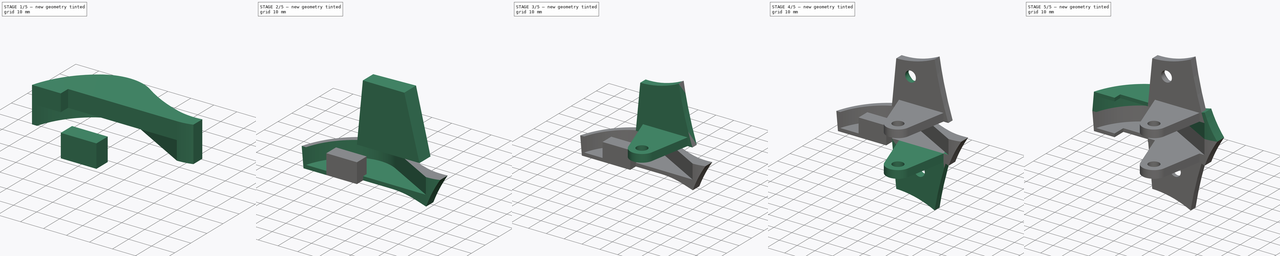
[diagram: build sequence overview — one tinted view per stage of 5, left to right]
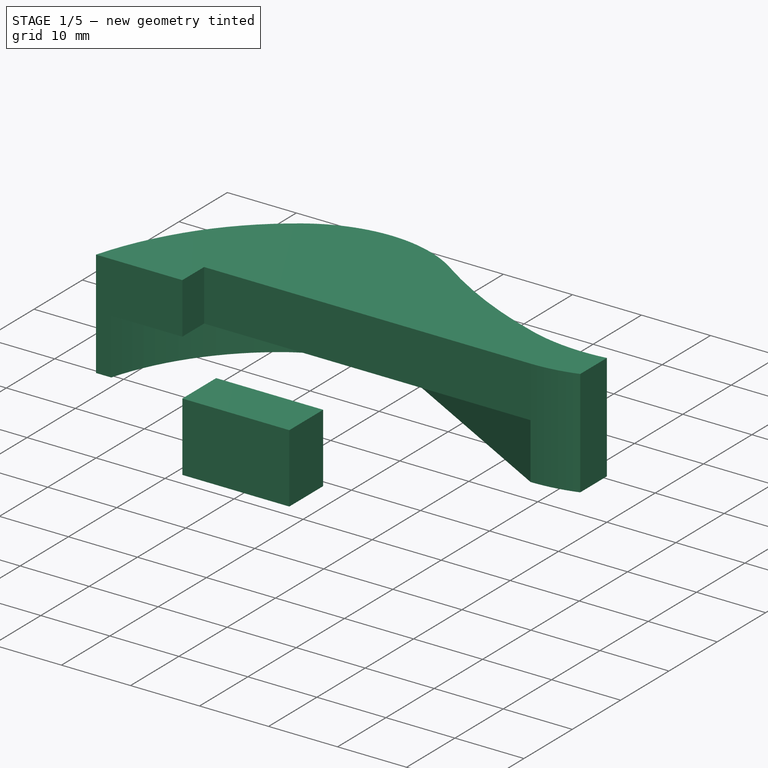
[diagram: stage 1 of 5 — iso view after this stage's code; geometry added in this stage tinted green]
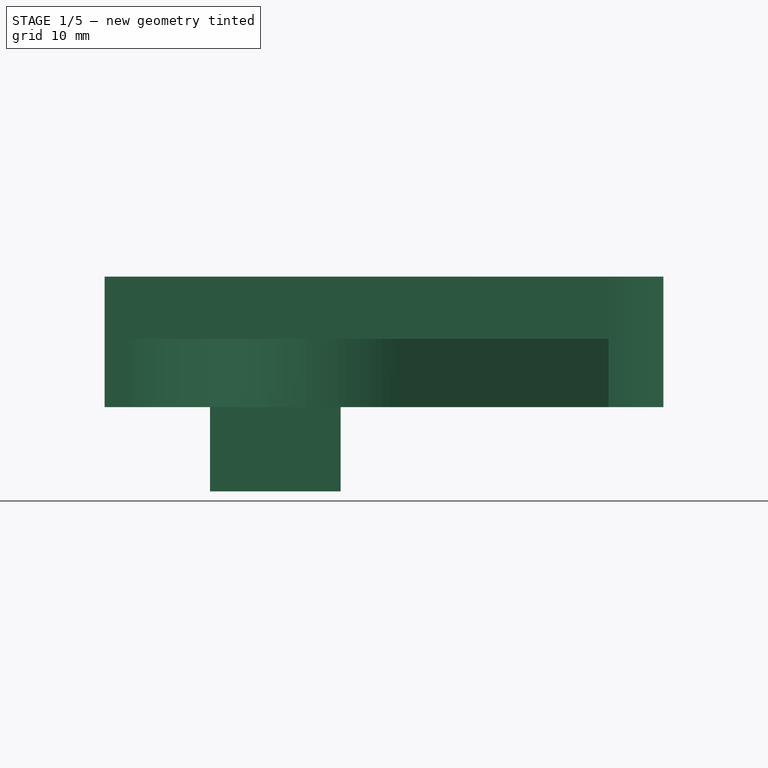
[diagram: stage 1 of 5 — front view after this stage's code; geometry added in this stage tinted green]
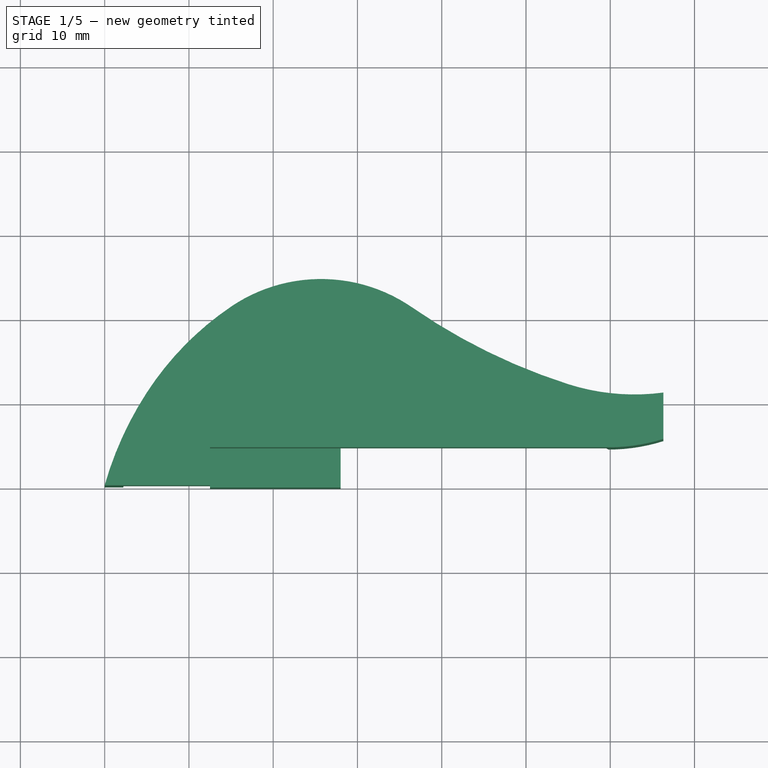
[diagram: stage 1 of 5 — top view after this stage's code; geometry added in this stage tinted green]
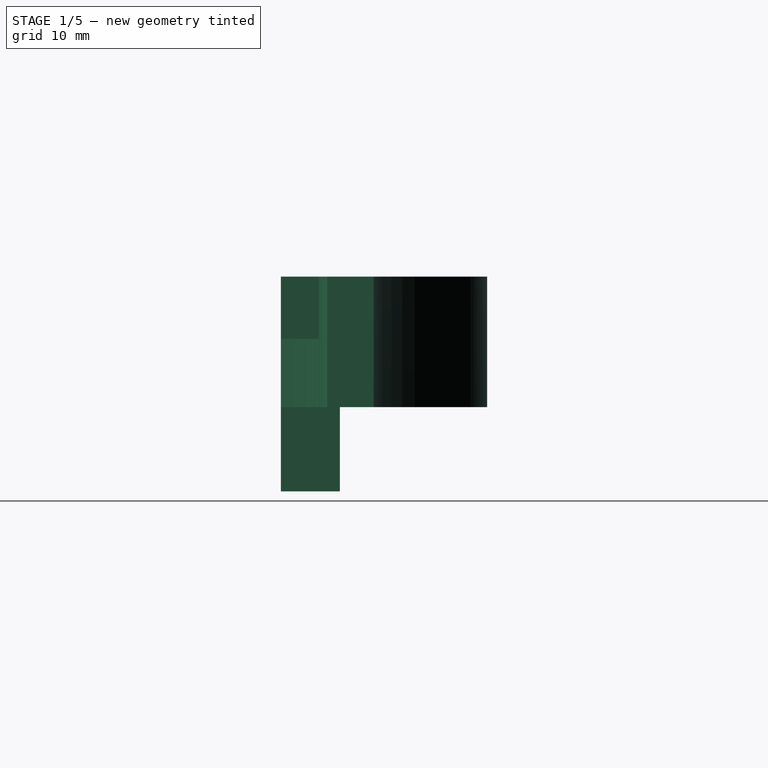
[diagram: stage 1 of 5 — right view after this stage's code; geometry added in this stage tinted green]
FCSTD DOCUMENT  (FreeCAD 0.17R13327 (Git))
Label: hinge14Left
License: All rights reserved
LicenseURL: http://en.wikipedia.org/wiki/All_rights_reserved
objects: Sketcher::SketchObject×10, PartDesign::Pocket×6, PartDesign::Pad×2, App::DocumentObjectGroup×2, Part::Mirroring×2, PartDesign::Chamfer×2, PartDesign::Draft×1, Part::Loft×1, Part::MultiFuse×1, Part::Box×1, Part::Cut×1
note: 35 computed .brp shape members not serialized (recipe doc carries the construction recipe); baked Part::Feature solids carry a one-line shape summary decoded from their .brp

FEATURE [Sketcher::SketchObject] Sketch022  label="SketchSideShape"
  MapMode = 5
  sketch-geometry (14):
    g0: LineSegment StartX=12.5 StartY=0 StartZ=0 EndX=12.5 EndY=4.5 EndZ=0
    g1: LineSegment StartX=54.8 StartY=4.5 StartZ=0 EndX=59.8 EndY=4.5 EndZ=0
    g2: LineSegment StartX=66.3 StartY=5.5 StartZ=0 EndX=66.3 EndY=11 EndZ=0
    g3: LineSegment StartX=12.5 StartY=0 StartZ=0 EndX=0 EndY=0 EndZ=0
    g4: ArcOfCircle CenterX=39.069 CenterY=-11.1223 CenterZ=0 NormalX=0 NormalY=0 NormalZ=1 AngleXU=0 Radius=40.6213 StartAngle=2.56568 EndAngle=2.86425
    g5: ArcOfCircle CenterX=35.2124 CenterY=-8.61804 CenterZ=0 NormalX=0 NormalY=0 NormalZ=1 AngleXU=0 Radius=36.023 StartAngle=2.16651 EndAngle=2.56568
    g6: ArcOfCircle CenterX=25.677 CenterY=5.44896 CenterZ=0 NormalX=0 NormalY=0 NormalZ=1 AngleXU=0 Radius=19.0287 StartAngle=0.965784 EndAngle=2.16651
    g7: ArcOfCircle CenterX=76.2951 CenterY=78.6472 CenterZ=0 NormalX=0 NormalY=0 NormalZ=1 AngleXU=0 Radius=69.9666 StartAngle=4.10738 EndAngle=4.40312
    g8: ArcOfCircle CenterX=62.8755 CenterY=36.6478 CenterZ=0 NormalX=0 NormalY=0 NormalZ=1 AngleXU=0 Radius=25.8754 StartAngle=4.40312 EndAngle=4.84513
    g9: LineSegment StartX=12.5 StartY=4.5 StartZ=0 EndX=35 EndY=4.5 EndZ=0
    g10: ArcOfCircle [constr] CenterX=27.6909 CenterY=-4.14926 CenterZ=0 NormalX=0 NormalY=0 NormalZ=1 AngleXU=0 Radius=28 StartAngle=1.11563 EndAngle=2.99286
    g11: ArcOfCircle [constr] CenterX=64.6137 CenterY=45.8831 CenterZ=0 NormalX=0 NormalY=0 NormalZ=1 AngleXU=0 Radius=35 StartAngle=3.93243 EndAngle=4.8669
    g12: ArcOfCircle CenterX=59.8 CenterY=26.125 CenterZ=0 NormalX=0 NormalY=0 NormalZ=1 AngleXU=0 Radius=21.625 StartAngle=4.71239 EndAngle=5.01769
    g13: LineSegment StartX=35 StartY=4.5 StartZ=0 EndX=54.8 EndY=4.5 EndZ=0
  constraints (51):
    c: Vertical(g0)
    c: Horizontal(g1)
    c: Vertical(g2)
    c: PointOnObject(g0,g-1)
    c: Coincident(g0,g3)
    c: Horizontal(g3)
    c: Coincident(g4,g3)
    c: DistanceY(g4,g3) = -11
    c: DistanceX(g3,g4) = 5
    c: Tangent(g4,g5) = -1.5708
    c: Tangent(g5,g6) = -1.5708
    c: DistanceY(g5) = 21.2
    c: DistanceX(g5,g3) = -15
    c: DistanceX(g3,g6) = 36.5
    c: DistanceY(g6) = 21.1
    c: Tangent(g6,g7) = 1.5708
    c: Tangent(g7,g8) = -1.5708
    c: DistanceY(g7) = 12
    c: DistanceX(g7,g3) = -55
    c: DistanceX(g8,g3) = -66.3
    c: DistanceY(g8) = 11
    c: Coincident(g2,g8)
    c: DistanceY(g0) = 4.5
    c: DistanceX(g1) = 5
    c: DistanceX(g3) = -12.5
    c: Radius(g5) = 36.023
    c: Coincident(g3,g-1)
    c: Coincident(g0,g9)
    c: Horizontal(g9)
    c: DistanceX(g9) = 35
    c: Radius(g7) = 69.9666
    c: Radius(g8) = 25.8754
    c: Radius(g4) = 40.6213
    c: Radius(g6) = 19.0287
    c: PointOnObject(g10,g-1)
    c: Coincident(g11,g10)
    c: Coincident(g10,g-1)
    c: DistanceX(g10) = 40
    c: DistanceY(g10) = 21
    c: DistanceX(g11) = 70
    c: DistanceY(g11) = 11.3
    c: Radius(g10) = 28
    c: Radius(g11) = 35
    c: DistanceY(g1) = 4.5
    c: DistanceY(g2,g1) = -1
    c: Coincident(g12,g1)
    c: Coincident(g12,g2)
    c: DistanceX(g1,g12) = 0
    c: DistanceX(g2,g1) = -6.5
    c: Coincident(g13,g9)
    c: Coincident(g13,g1)
FEATURE [PartDesign::Pad] Pad  label="PadSideShape"
  Length = 15.5
  Length2 = 100
  Profile = -> Sketch022
  Type = 0
FEATURE [Sketcher::SketchObject] Sketch023  label="SketchHollow"
  ExternalGeometry = -> [Pad]
  MapMode = 5
  Placement = pos=(0,0,0) rot=(1,0,0;3.14159rad)
  Support = -> [Pad]
  sketch-geometry (8):
    g0: LineSegment StartX=2.2 StartY=0 StartZ=0 EndX=15 EndY=0 EndZ=0
    g1: LineSegment StartX=15 StartY=0 StartZ=0 EndX=15 EndY=25 EndZ=0
    g2: LineSegment StartX=59.8 StartY=25 StartZ=0 EndX=59.8 EndY=-4.5 EndZ=0
    g3: LineSegment StartX=59.8 StartY=-4.5 StartZ=0 EndX=34.6672 EndY=-18.4207 EndZ=0
    g4: ArcOfCircle CenterX=25.4612 CenterY=-1.8 CenterZ=0 NormalX=0 NormalY=0 NormalZ=1 AngleXU=0 Radius=19 StartAngle=4.09746 EndAngle=5.21821
    g5: ArcOfCircle CenterX=32.9609 CenterY=8.81856 CenterZ=0 NormalX=0 NormalY=0 NormalZ=1 AngleXU=0 Radius=32 StartAngle=3.42079 EndAngle=4.09746
    g6: LineSegment [constr] StartX=19.4612 StartY=-19.8278 StartZ=0 EndX=31.4612 EndY=-19.8278 EndZ=0
    g7: LineSegment StartX=15 StartY=25 StartZ=0 EndX=59.8 EndY=25 EndZ=0
  constraints (28):
    c: PointOnObject(g0,g-1)
    c: Horizontal(g0)
    c: Coincident(g0,g1)
    c: Coincident(g2,g3)
    c: Tangent(g3,g4) = 1.5708
    c: Tangent(g4,g5) = -1.5708
    c: Coincident(g5,g0)
    c: DistanceX(g0) = 2.2
    c: DistanceX(g4) = 14.5
    c: Radius(g5) = 32
    c: PointOnObject(g6,g4)
    c: PointOnObject(g6,g4)
    c: Horizontal(g6)
    c: DistanceX(g6) = 12
    c: DistanceY(g6) = -19.8278
    c: DistanceY(g4) = -17.3194
    c: DistanceY(g3) = -18.4207
    c: DistanceX(g3) = 34.6672
    c: Vertical(g2)
    c: Vertical(g1)
    c: DistanceY(g1) = 25
    c: Coincident(g7,g1)
    c: Coincident(g7,g2)
    c: Horizontal(g7)
    c: DistanceX(g1) = 15
    c: Radius(g4) = 19
    c: DistanceY(g4) = -1.8
    c: Coincident(g2,g-3)
FEATURE [PartDesign::Pocket] Pocket  label="PocketHollow"
  Length = 8.1
  Length2 = 100
  Profile = -> Sketch023
  Type = 0
FEATURE [Part::Box] Box001  label="CubeDoubleFrame"
  AttacherType = Attacher::AttachEngine3D
  Height = 10
  Length = 15.5
  Placement = pos=(12.5,0,-10) rot=(0,0,1;0rad)
  Width = 7
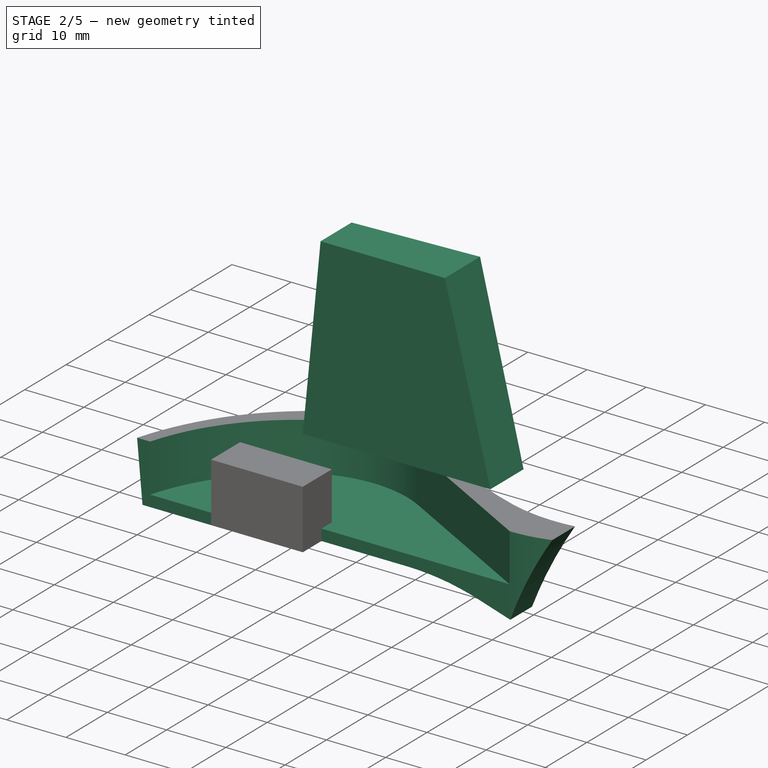
[diagram: stage 2 of 5 — iso view after this stage's code; geometry added in this stage tinted green]
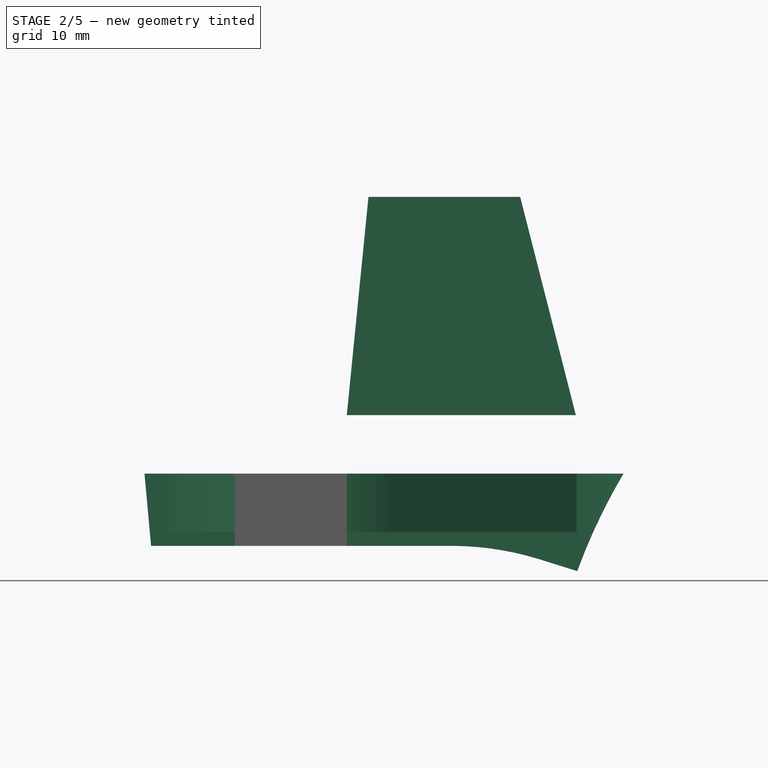
[diagram: stage 2 of 5 — front view after this stage's code; geometry added in this stage tinted green]
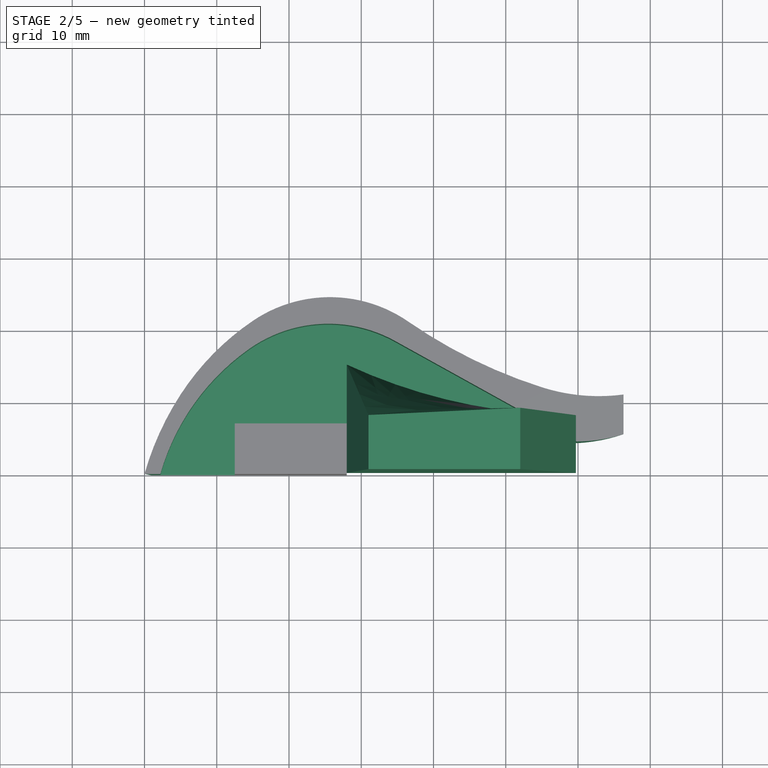
[diagram: stage 2 of 5 — top view after this stage's code; geometry added in this stage tinted green]
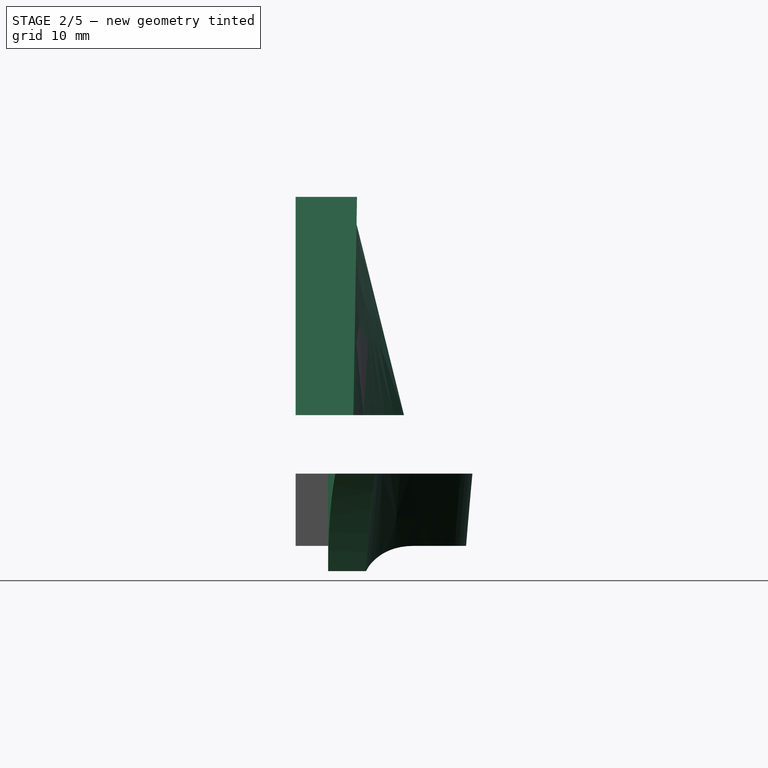
[diagram: stage 2 of 5 — right view after this stage's code; geometry added in this stage tinted green]
FEATURE [PartDesign::Draft] Draft  label="DraftTopAngle"
  Angle = 5
  Base = -> Pocket [Face6,Face2,Face1,Face4,Face4]
  NeutralPlane = -> Pocket [Face4]
  Reversed = true
FEATURE [App::DocumentObjectGroup] Group  label="Base"
  Group = -> [Pad,Pocket,Draft]
FEATURE [Sketcher::SketchObject] Sketch  label="SketchTopView"
  ExternalGeometry = -> [Draft]
  MapMode = 5
  Placement = pos=(0,0,0) rot=(1,0,0;1.5708rad)
  Support = -> [Draft]
  sketch-geometry (8):
    g0: LineSegment StartX=66.3 StartY=15.5 StartZ=0 EndX=0 EndY=15.5 EndZ=0
    g1: LineSegment StartX=0 StartY=15.5 StartZ=0 EndX=0 EndY=10 EndZ=0
    g2: LineSegment StartX=0 StartY=10 StartZ=0 EndX=42.4622 EndY=10 EndZ=0
    g3: ArcOfCircle CenterX=42.4622 CenterY=51 CenterZ=0 NormalX=0 NormalY=0 NormalZ=1 AngleXU=0 Radius=41 StartAngle=4.71239 EndAngle=5.01575
    g4: LineSegment StartX=54.71 StartY=11.8721 StartZ=0 EndX=59.9 EndY=13.4967 EndZ=0
    g5: LineSegment StartX=66.3 StartY=15.5 StartZ=0 EndX=66.3 EndY=1e-11 EndZ=0
    g6: LineSegment [constr] StartX=59.9 StartY=13.4967 StartZ=0 EndX=66.3 EndY=15.5 EndZ=0
    g7: ArcOfCircle CenterX=135.069 CenterY=40.8754 CenterZ=0 NormalX=0 NormalY=0 NormalZ=1 AngleXU=0 Radius=80 StartAngle=3.49089 EndAngle=3.67787
  constraints (27):
    c: Horizontal(g0)
    c: Coincident(g0,g1)
    c: Vertical(g1)
    c: Coincident(g1,g2)
    c: Horizontal(g2)
    c: Tangent(g2,g3) = -1.5708
    c: Coincident(g3,g4)
    c: Tangent(g3,g4)
    c: DistanceY(g1) = 10
    c: Radius(g3) = 41
    c: DistanceX(g3) = 54.71
    c: PointOnObject(g5,g-1)
    c: Vertical(g5)
    c: Coincident(g6,g4)
    c: Tangent(g4,g6)
    c: Coincident(g7,g5)
    c: Coincident(g7,g4)
    c: Radius(g7) = 80
    c: Coincident(g6,g5)
    c: DistanceX(g4) = 59.9
    c: PointOnObject(g0,g-2)
    c: DistanceX(g3) = 42.4622
    c: DistanceY(g3) = 51
    c: DistanceY(g3) = 11.8721
    c: DistanceX(g2) = 42.4622
    c: Coincident(g0,g5)
    c: Coincident(g-3,g0)
FEATURE [PartDesign::Pocket] Pocket001  label="PocketTopView"
  Length = 5
  Length2 = 100
  Profile = -> Sketch
  Type = 1
FEATURE [Sketcher::SketchObject] Sketch029  label="SketchWingInner"
  MapMode = 5
  Placement = pos=(0,0,8.1) rot=(0,0,1;0rad)
  sketch-geometry (4):
    g0: LineSegment StartX=28 StartY=15 StartZ=0 EndX=28 EndY=0 EndZ=0
    g1: LineSegment StartX=28 StartY=0 StartZ=0 EndX=59.7 EndY=0 EndZ=0
    g2: LineSegment StartX=59.7 StartY=0 StartZ=0 EndX=59.7 EndY=8 EndZ=0
    g3: ArcOfCircle CenterX=59.7 CenterY=83.2779 CenterZ=0 NormalX=0 NormalY=0 NormalZ=1 AngleXU=0 Radius=75.2779 StartAngle=4.27772 EndAngle=4.71239
  constraints (12):
    c: Vertical(g0)
    c: Coincident(g0,g1)
    c: Horizontal(g1)
    c: Coincident(g1,g2)
    c: Vertical(g2)
    c: Perpendicular(g2,g3) = 4.71239
    c: Coincident(g3,g0)
    c: DistanceX(g0) = 28
    c: DistanceX(g1) = 59.7
    c: DistanceY(g0) = -15
    c: DistanceY(g2) = 8
    c: PointOnObject(g0,g-1)
FEATURE [Sketcher::SketchObject] Sketch030  label="SketchWingOuter"
  MapMode = 5
  Placement = pos=(0,0,38.3) rot=(0,0,1;0rad)
  sketch-geometry (4):
    g0: LineSegment StartX=31 StartY=0 StartZ=0 EndX=52 EndY=0 EndZ=0
    g1: LineSegment StartX=52 StartY=0 StartZ=0 EndX=52 EndY=8.5 EndZ=0
    g2: LineSegment StartX=52 StartY=8.5 StartZ=0 EndX=31 EndY=7.5 EndZ=0
    g3: LineSegment StartX=31 StartY=7.5 StartZ=0 EndX=31 EndY=0 EndZ=0
  constraints (12):
    c: Coincident(g0,g1)
    c: Coincident(g1,g2)
    c: Coincident(g2,g3)
    c: Coincident(g3,g0)
    c: Horizontal(g0)
    c: Vertical(g1)
    c: Vertical(g3)
    c: PointOnObject(g0,g-1)
    c: DistanceX(g0) = 31
    c: DistanceX(g0) = 52
    c: DistanceY(g1) = 8.5
    c: DistanceY(g2) = 7.5
FEATURE [Part::Loft] Loft  label="LoftWing"
  Closed = false
  MaxDegree = 5
  Ruled = false
  Sections = -> [Sketch029,Sketch030]
  Solid = true
FEATURE [Part::Mirroring] Part__Mirroring001  label="PocketTopView (Mirror #2)"
  Base = (0,0,0)
  Normal = (0,0,1)
  Source = -> Pocket001
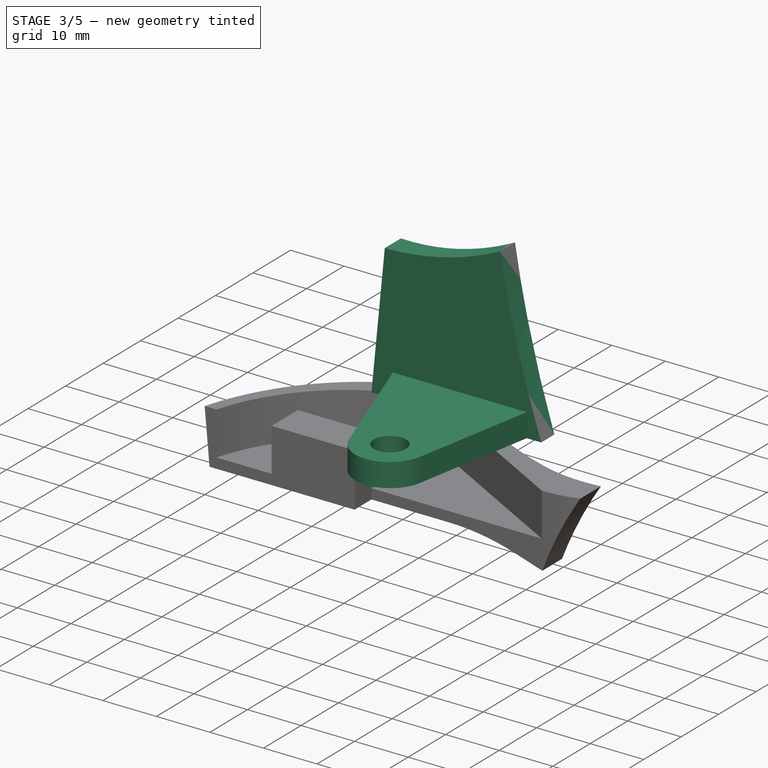
[diagram: stage 3 of 5 — iso view after this stage's code; geometry added in this stage tinted green]
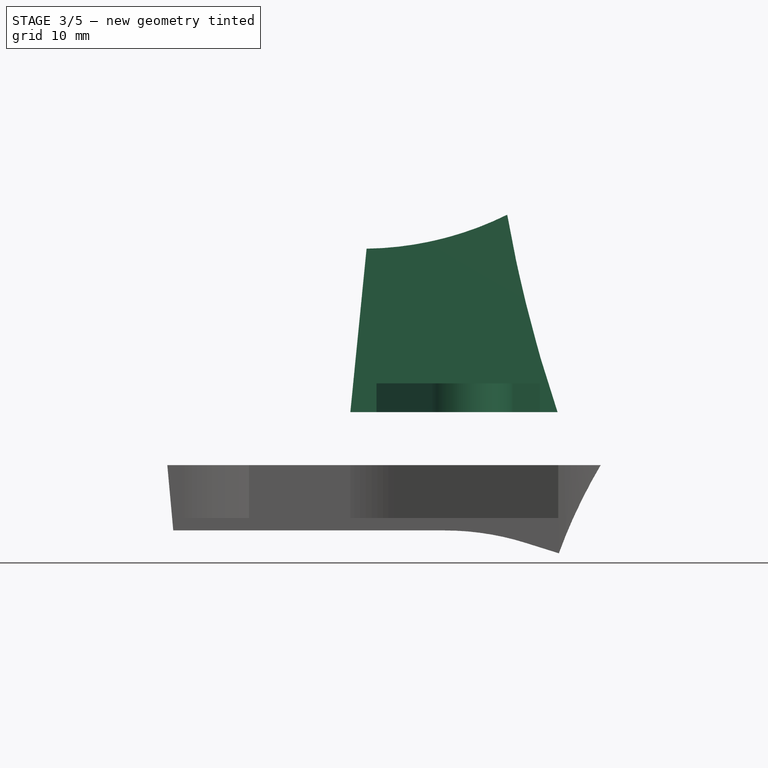
[diagram: stage 3 of 5 — front view after this stage's code; geometry added in this stage tinted green]
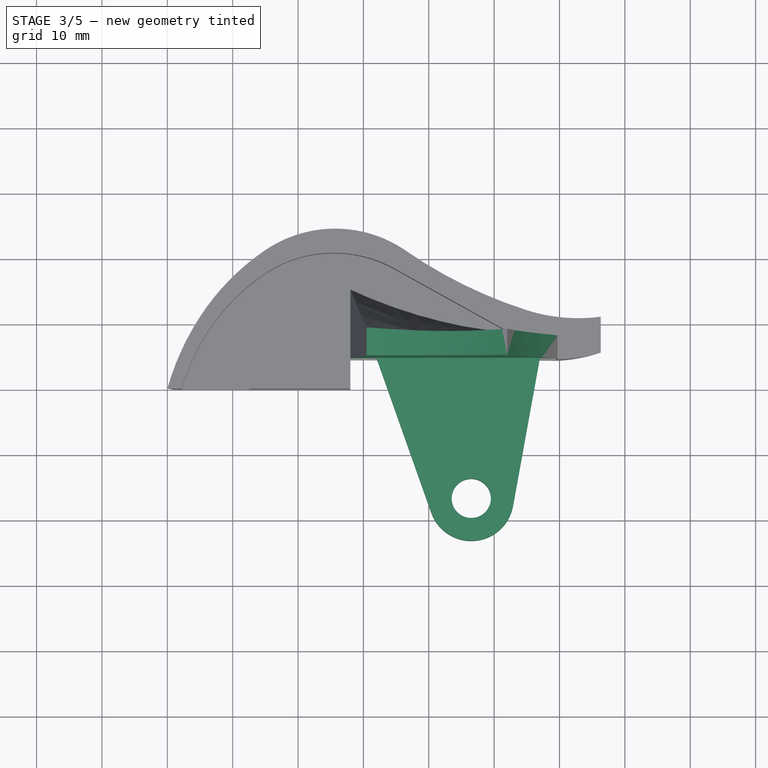
[diagram: stage 3 of 5 — top view after this stage's code; geometry added in this stage tinted green]
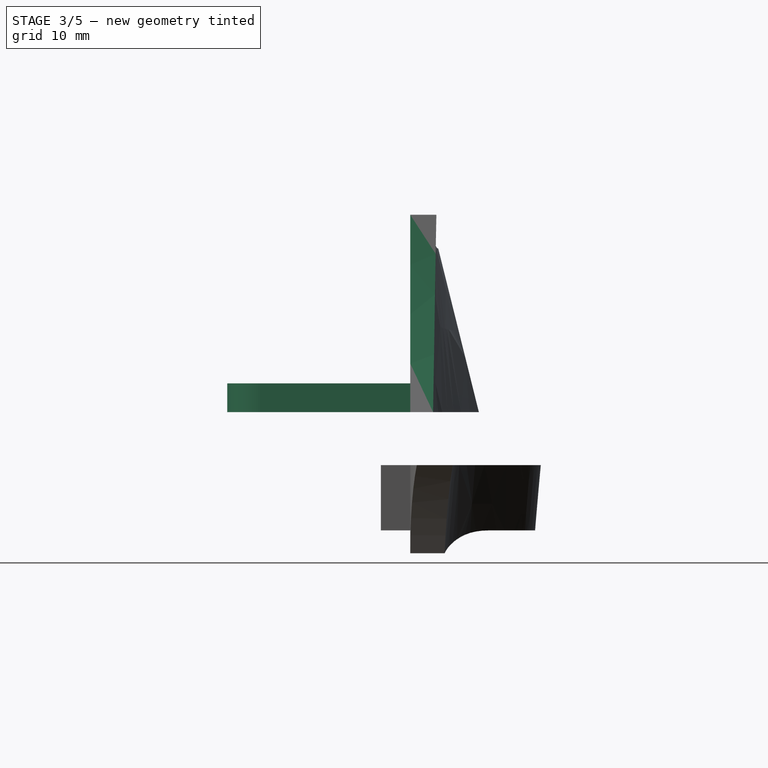
[diagram: stage 3 of 5 — right view after this stage's code; geometry added in this stage tinted green]
FEATURE [Sketcher::SketchObject] Sketch039  label="SketchWingBelow"
  MapMode = 5
  Placement = pos=(0,0,8.1) rot=(1,0,0;3.14159rad)
  Support = -> [Loft]
  sketch-geometry (4):
    g0: LineSegment StartX=0 StartY=-4.5 StartZ=0 EndX=65 EndY=-4.5 EndZ=0
    g1: LineSegment StartX=65 StartY=-4.5 StartZ=0 EndX=65 EndY=1 EndZ=0
    g2: LineSegment StartX=65 StartY=1 StartZ=0 EndX=0 EndY=1 EndZ=0
    g3: LineSegment StartX=0 StartY=1 StartZ=0 EndX=0 EndY=-4.5 EndZ=0
  constraints (12):
    c: Coincident(g1,g2)
    c: Coincident(g2,g3)
    c: Horizontal(g0)
    c: Horizontal(g2)
    c: Vertical(g1)
    c: Vertical(g3)
    c: DistanceY(g2) = 1
    c: Coincident(g0,g1)
    c: Coincident(g3,g0)
    c: PointOnObject(g0,g-2)
    c: DistanceY(g0) = -4.5
    c: DistanceX(g1) = 65
FEATURE [PartDesign::Pocket] Pocket008  label="PocketWingBelow"
  Length = 5
  Length2 = 100
  Profile = -> Sketch039
  Type = 1
FEATURE [Sketcher::SketchObject] Sketch040  label="SketchWingShape"
  ExternalGeometry = -> [Pocket008]
  MapMode = 5
  Placement = pos=(0,4.5,0) rot=(1,0,0;1.5708rad)
  Support = -> [Pocket008]
  sketch-geometry (6):
    g0: LineSegment StartX=31 StartY=38.3 StartZ=0 EndX=52 EndY=38.3 EndZ=0
    g1: LineSegment StartX=52 StartY=38.3 StartZ=0 EndX=59.7 EndY=8.1 EndZ=0
    g2: ArcOfCircle CenterX=29.7875 CenterY=83.0952 CenterZ=0 NormalX=0 NormalY=0 NormalZ=1 AngleXU=0 Radius=50 StartAngle=4.72631 EndAngle=5.17273
    g3: ArcOfCircle CenterX=249.061 CenterY=72.4623 CenterZ=0 NormalX=0 NormalY=0 NormalZ=1 AngleXU=0 Radius=200 StartAngle=3.31325 EndAngle=3.46924
    g4: LineSegment [constr] StartX=31 StartY=38.3 StartZ=0 EndX=28 EndY=8.1 EndZ=0
    g5: LineSegment StartX=31 StartY=38.3 StartZ=0 EndX=30.4834 EndY=33.1 EndZ=0
  constraints (15):
    c: Coincident(g0,g1)
    c: Coincident(g3,g0)
    c: Coincident(g3,g1)
    c: Radius(g3) = 200
    c: Coincident(g2,g0)
    c: PointOnObject(g2,g4)
    c: Radius(g2) = 50
    c: Coincident(g5,g2)
    c: Coincident(g5,g4)
    c: Coincident(g5,g0)
    c: Coincident(g4,g-4)
    c: Coincident(g-3,g1)
    c: Coincident(g0,g-6)
    c: Coincident(g-5,g0)
    c: DistanceY(g4,g2) = 25
FEATURE [PartDesign::Pocket] Pocket009  label="PocketWingShape"
  Length = 5
  Length2 = 100
  Profile = -> Sketch040
  Type = 1
FEATURE [App::DocumentObjectGroup] Group001  label="WingAndHinge"
  Group = -> [Loft,Pocket008,Pocket009]
FEATURE [Sketcher::SketchObject] Sketch038  label="SketchHinge"
  ExternalGeometry = -> [Pocket009]
  MapMode = 5
  Placement = pos=(0,0,8.1) rot=(1,0,0;3.14159rad)
  Support = -> [Pocket009]
  sketch-geometry (5):
    g0: LineSegment StartX=32 StartY=-4.5 StartZ=0 EndX=40.3721 EndY=19.1677 EndZ=0
    g1: ArcOfCircle CenterX=46.5 CenterY=17 CenterZ=0 NormalX=0 NormalY=0 NormalZ=1 AngleXU=0 Radius=6.5 StartAngle=0.179185 EndAngle=2.80159
    g2: LineSegment StartX=52.8959 StartY=18.1585 StartZ=0 EndX=57 EndY=-4.5 EndZ=0
    g3: Circle CenterX=46.5 CenterY=17 CenterZ=0 NormalX=0 NormalY=0 NormalZ=1 AngleXU=0 Radius=3
    g4: LineSegment StartX=57 StartY=-4.5 StartZ=0 EndX=32 EndY=-4.5 EndZ=0
  constraints (13):
    c: Tangent(g0,g1) = 1.5708
    c: Tangent(g1,g2) = 1.5708
    c: Coincident(g3,g1)
    c: DistanceX(g0) = 32
    c: DistanceY(g1) = 17
    c: Radius(g3) = 3
    c: Radius(g1) = 6.5
    c: DistanceX(g1) = 46.5
    c: DistanceX(g2) = 57
    c: Coincident(g4,g2)
    c: Coincident(g0,g4)
    c: PointOnObject(g0,g-3)
    c: PointOnObject(g2,g-3)
FEATURE [PartDesign::Pad] Pad001  label="PadHinge"
  Length = 4.4
  Length2 = 100
  Profile = -> Sketch038
  Reversed = true
  Type = 0
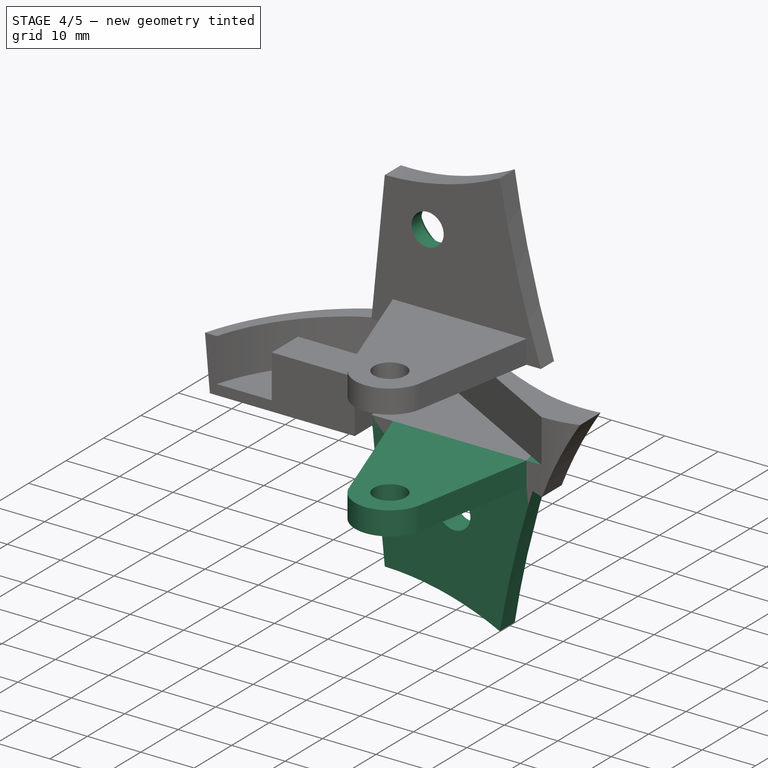
[diagram: stage 4 of 5 — iso view after this stage's code; geometry added in this stage tinted green]
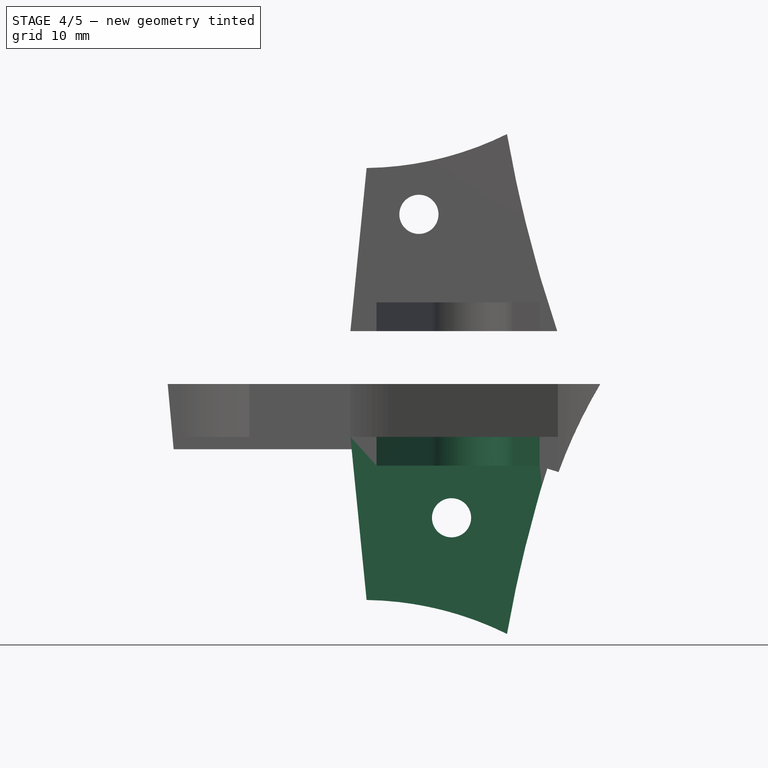
[diagram: stage 4 of 5 — front view after this stage's code; geometry added in this stage tinted green]
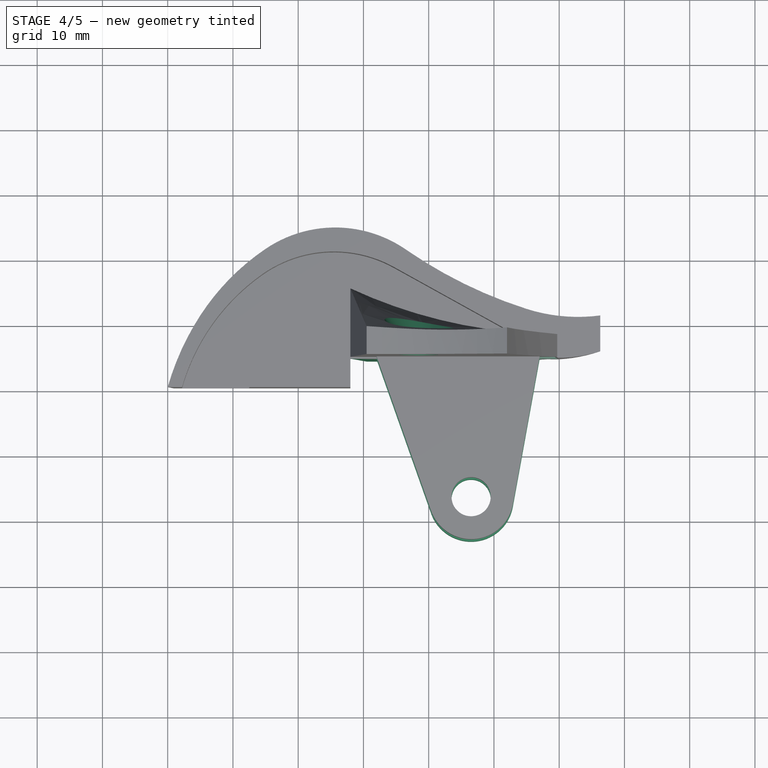
[diagram: stage 4 of 5 — top view after this stage's code; geometry added in this stage tinted green]
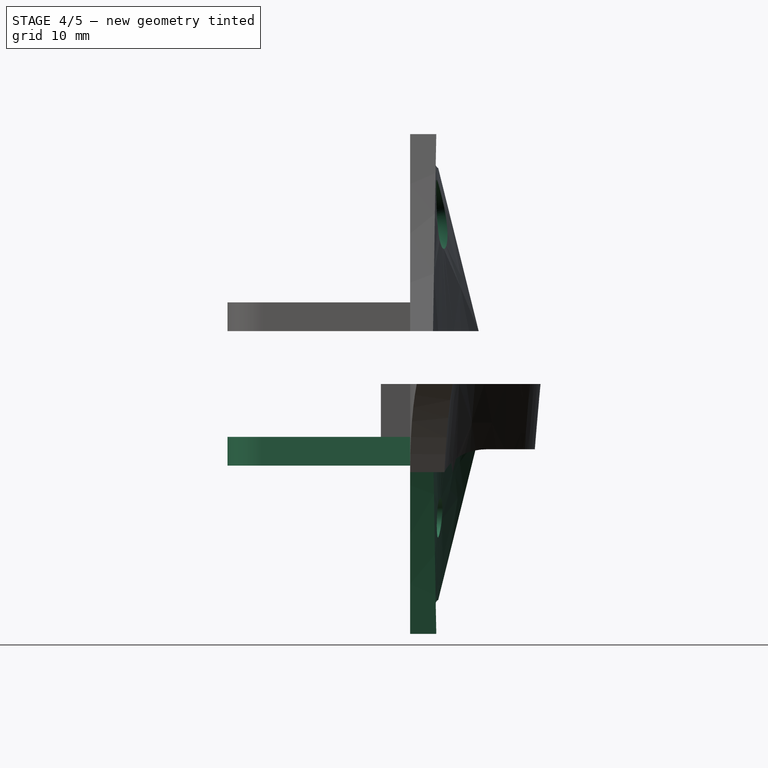
[diagram: stage 4 of 5 — right view after this stage's code; geometry added in this stage tinted green]
FEATURE [Sketcher::SketchObject] Sketch035  label="SketchWingHoleRight"
  MapMode = 5
  Placement = pos=(0,4.5,0) rot=(1,0,0;1.5708rad)
  Support = -> [Pad001]
  sketch-geometry (1):
    g0: Circle CenterX=38.5 CenterY=26 CenterZ=0 NormalX=0 NormalY=0 NormalZ=1 AngleXU=0 Radius=3
  constraints (3):
    c: DistanceX(g0) = 38.5
    c: DistanceY(g0) = 26
    c: Radius(g0) = 3
FEATURE [Part::Mirroring] Part__Mirroring  label="PadHinge (Mirror #1)"
  Base = (0,0,0)
  Normal = (0,0,1)
  Source = -> Pad001
FEATURE [Sketcher::SketchObject] Sketch041  label="SketchWingHoleLeft"
  MapMode = 5
  Placement = pos=(0,4.5,0) rot=(1,0,0;1.5708rad)
  Support = -> [Part__Mirroring]
  sketch-geometry (1):
    g0: Circle CenterX=43.5 CenterY=-20.5 CenterZ=0 NormalX=0 NormalY=0 NormalZ=1 AngleXU=0 Radius=3
  constraints (3):
    c: Radius(g0) = 3
    c: DistanceX(g0) = 43.5
    c: DistanceY(g0) = -20.5
FEATURE [PartDesign::Pocket] Pocket010  label="PocketWingHoleRight"
  Length = 5
  Length2 = 100
  Profile = -> Sketch035
  Type = 1
FEATURE [PartDesign::Pocket] Pocket011  label="PocketWingHoleLeft"
  Length = 5
  Length2 = 100
  Profile = -> Sketch041
  Type = 1
FEATURE [PartDesign::Chamfer] Chamfer001  label="ChamferRight"
  Base = -> Pocket010 [Edge9,Edge8]
  Size = 2.3
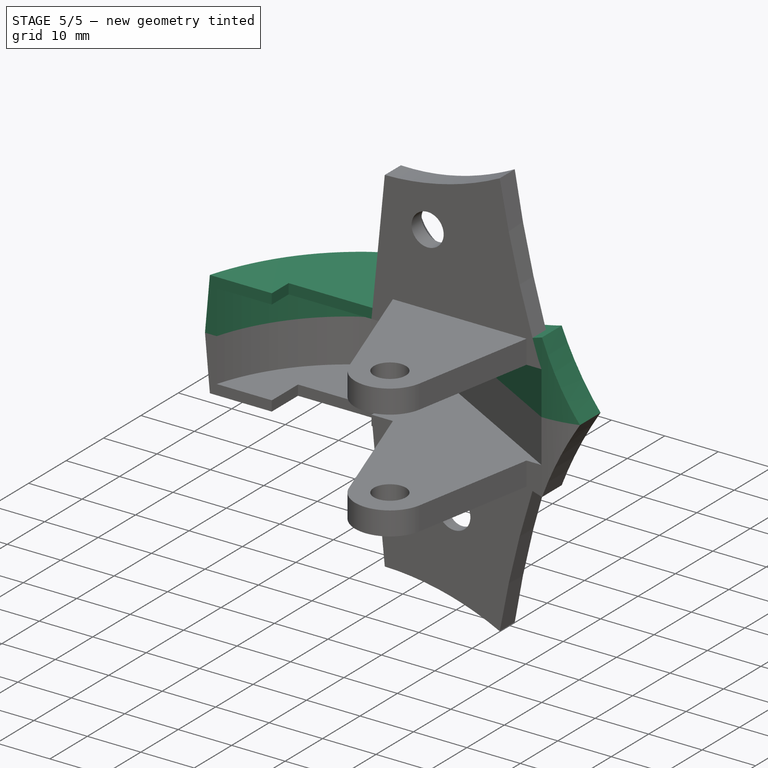
[diagram: stage 5 of 5 — iso view after this stage's code; geometry added in this stage tinted green]
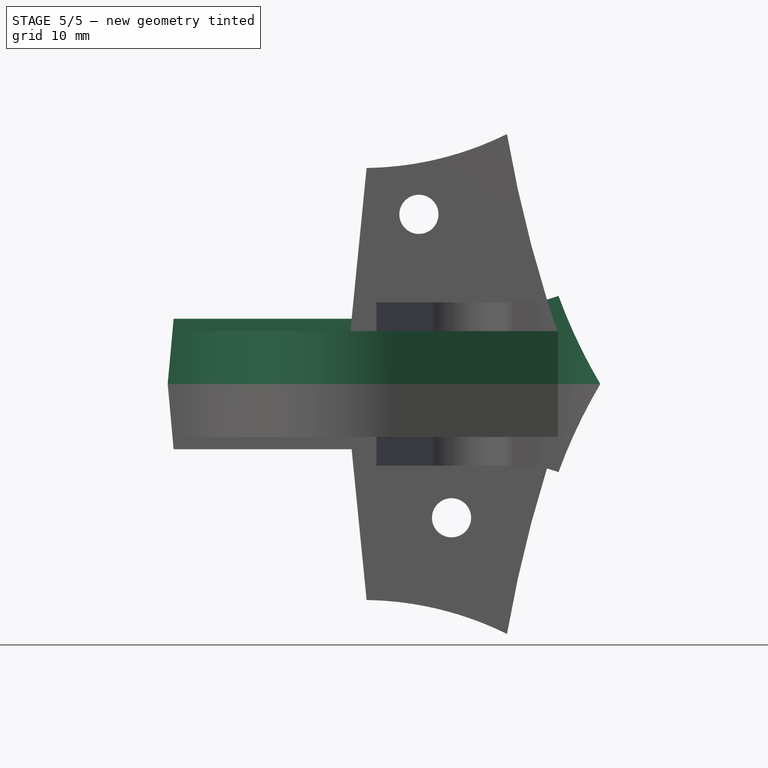
[diagram: stage 5 of 5 — front view after this stage's code; geometry added in this stage tinted green]
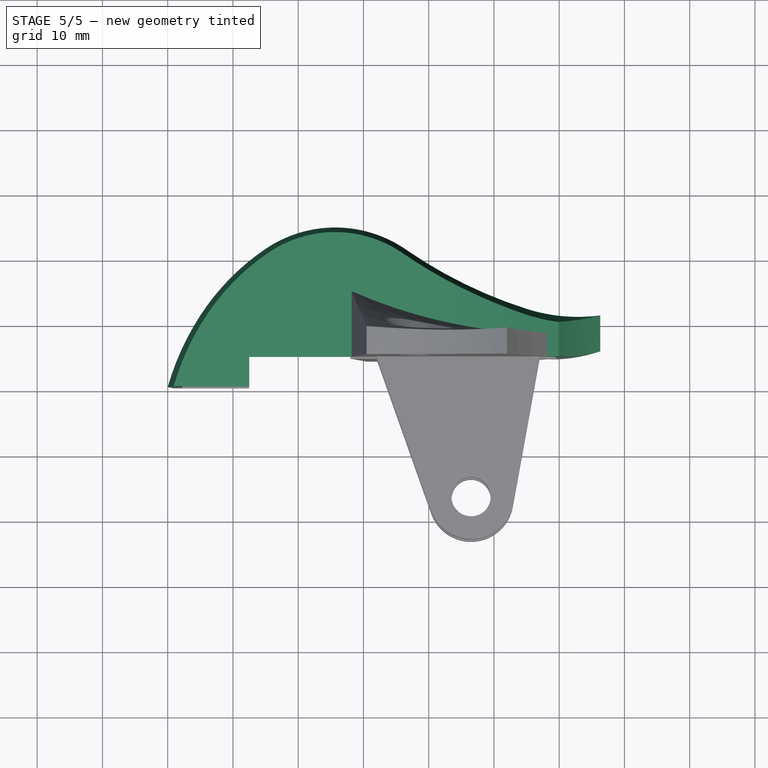
[diagram: stage 5 of 5 — top view after this stage's code; geometry added in this stage tinted green]
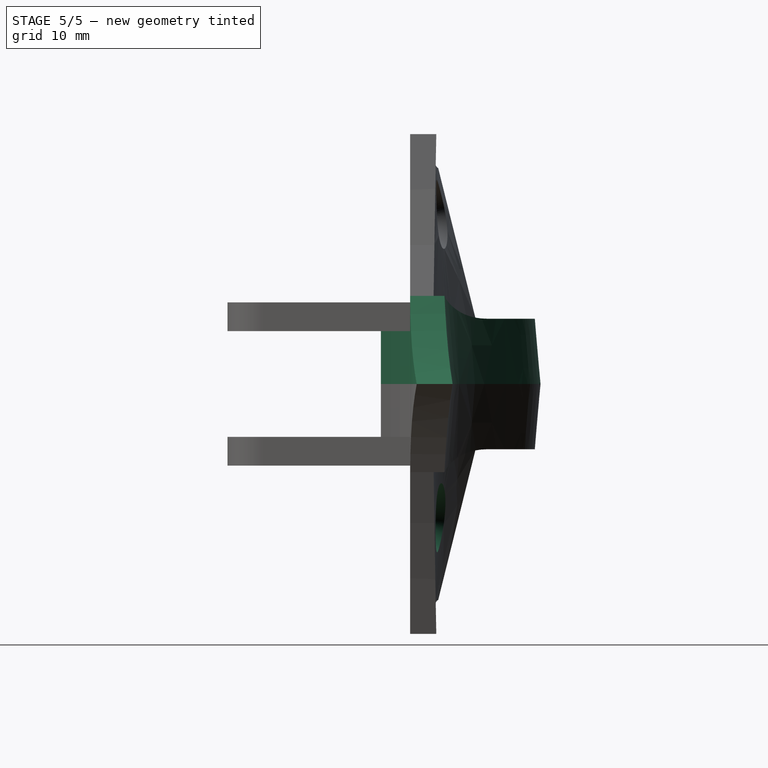
[diagram: stage 5 of 5 — right view after this stage's code; geometry added in this stage tinted green]
FEATURE [PartDesign::Chamfer] Chamfer  label="ChamferLeft"
  Base = -> Pocket011 [Edge9,Edge8]
  Size = 2.3
FEATURE [Part::MultiFuse] Fusion
  Shapes = -> [Pocket001,Part__Mirroring001,Chamfer,Chamfer001]
FEATURE [Part::Cut] Cut
  Base = -> Fusion
  Tool = -> Box001
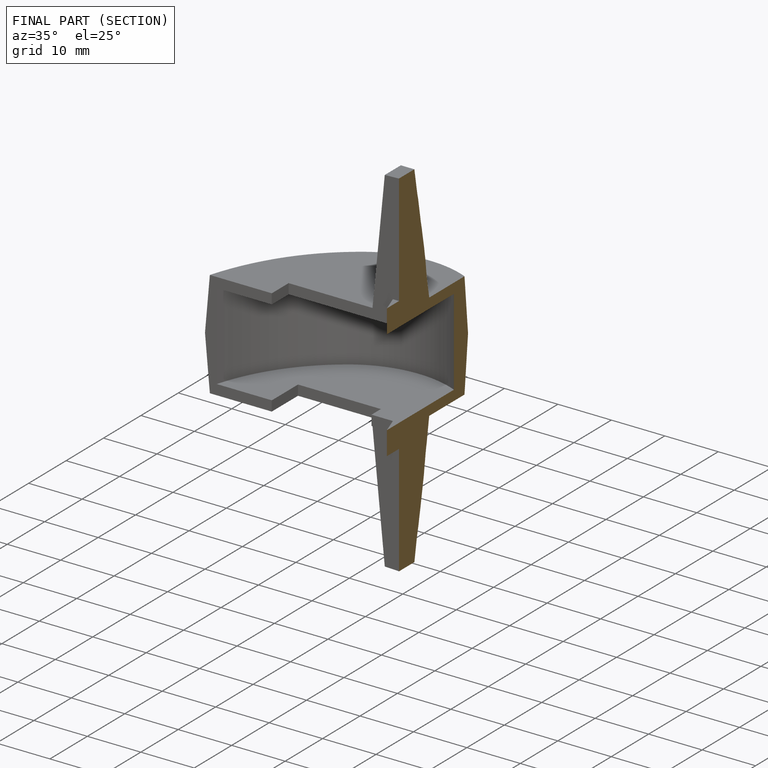
[diagram: finished part — half-section view (interior)]
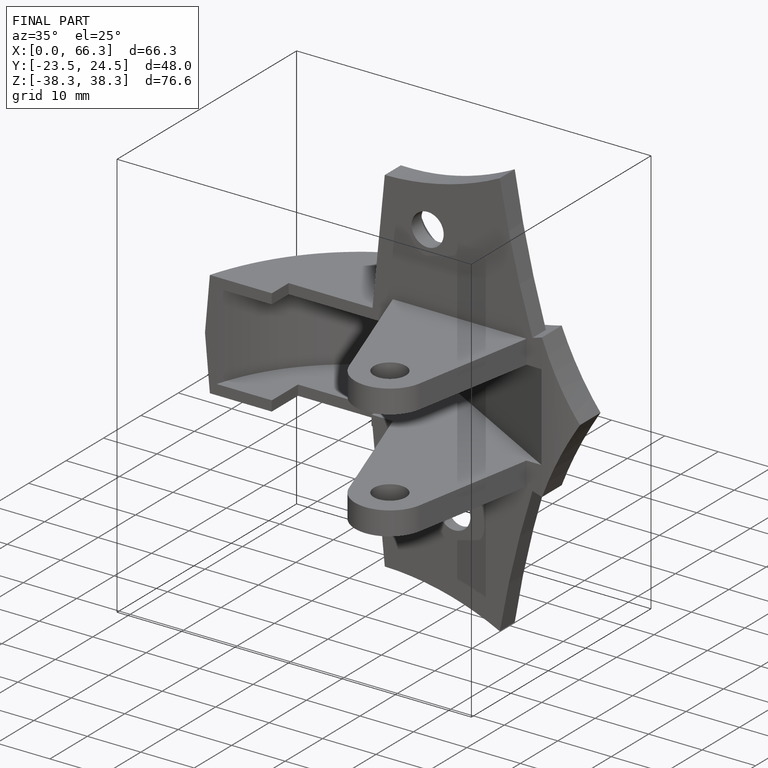
[diagram: finished part — iso view with bounding-box wireframe]
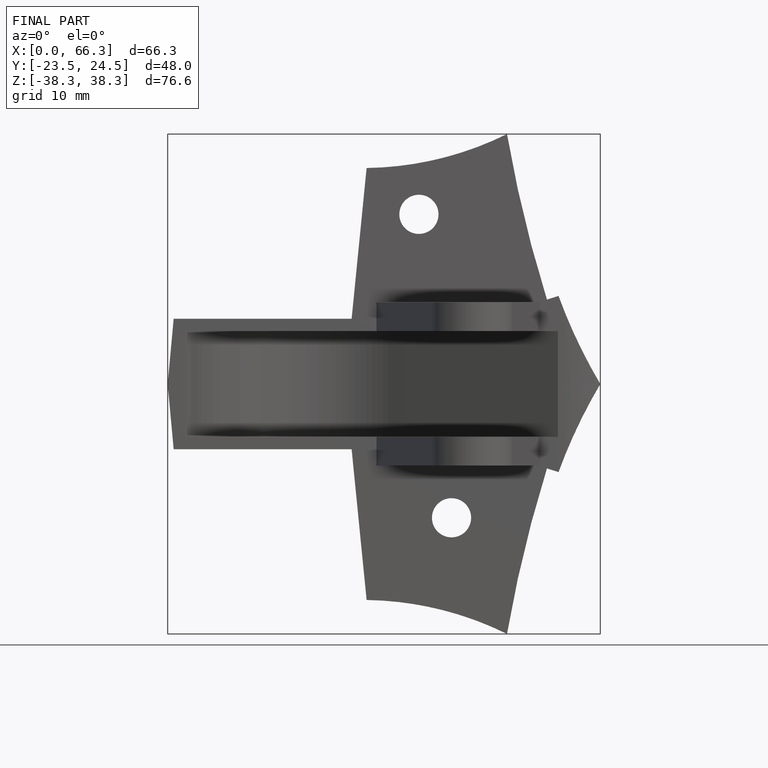
[diagram: finished part — front view with bounding-box wireframe]
